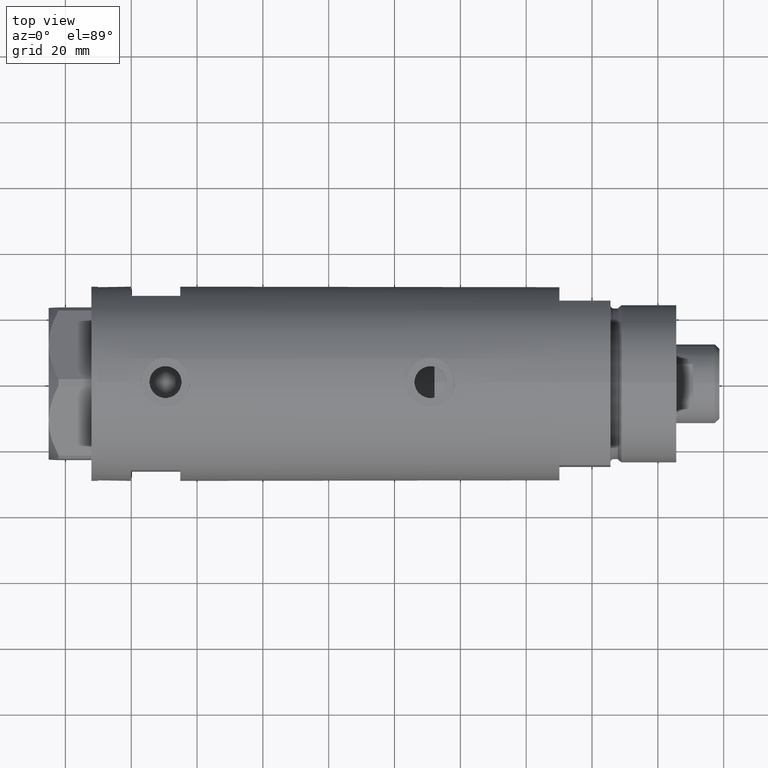
[diagram: clean part render]
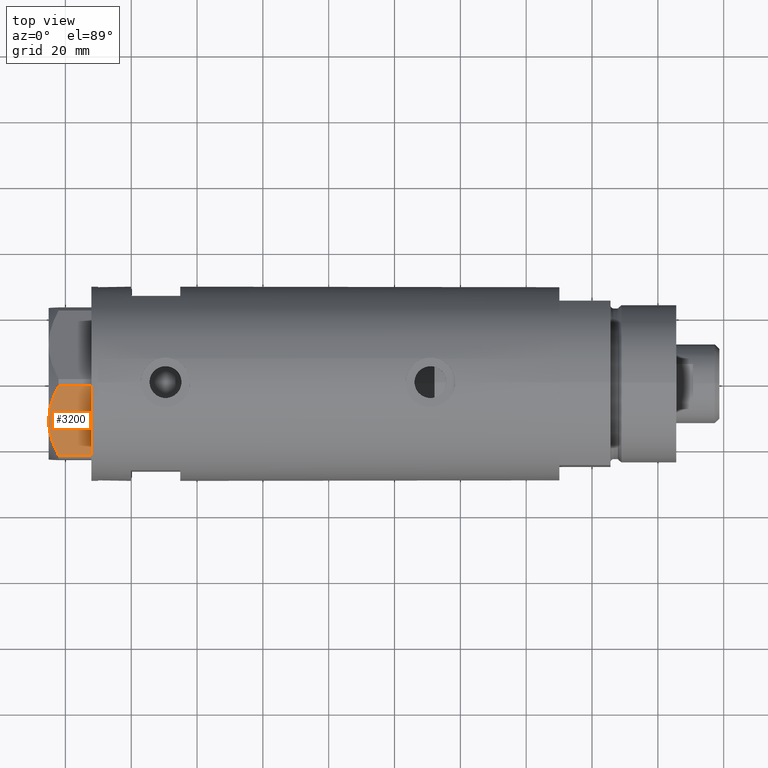
[diagram: same view with one face highlighted and labeled with its STEP entity id]
A machine part, top view. The second image highlights one B-rep face of the part: STEP entity #3200.
In plain terms, the highlighted planar face has unit normal (-0, 0.5, -0.866).
Its self-contained STEP definition (entity closure, byte-faithful):
#26 = PLANE ( 'NONE',  #490 ) ;
#98 = CARTESIAN_POINT ( 'NONE',  ( -22.03005154776132102, -13.83905619136147536, 13.00000000000000000 ) ) ;
#345 = VECTOR ( 'NONE', #811, 1000.000000000000000 ) ;
#402 = CARTESIAN_POINT ( 'NONE',  ( -3.925137811029895563, -24.29193301091818213, 11.39727285399141365 ) ) ;
#427 = CARTESIAN_POINT ( 'NONE',  ( -0.9699484522383853280, -25.99811238272275205, 9.983800287807632401 ) ) ;
#490 = AXIS2_PLACEMENT_3D ( 'NONE', #3016, #1461, #2945 ) ;
#515 = EDGE_CURVE ( 'NONE', #3776, #3333, #919, .T. ) ;
#625 = VECTOR ( 'NONE', #4419, 1000.000000000000000 ) ;
#765 = CARTESIAN_POINT ( 'NONE',  ( -5.671686373602661035, -23.28356272816404271, 12.04068176582933702 ) ) ;
#811 = DIRECTION ( 'NONE',  ( 0.000000000000000000, 0.000000000000000000, 1.000000000000000000 ) ) ;
#859 = B_SPLINE_CURVE_WITH_KNOTS ( 'NONE', 3,
 ( #1468, #4013, #1174, #2280, #2932, #2131, #4786, #1915, #1055, #1153 ),
 .UNSPECIFIED., .F., .F.,
 ( 4, 2, 2, 2, 4 ),
 ( 0.001228959670438515206, 0.007497079744270818830, 0.01063113978118697053, 0.01219816979964504639, 0.01376519981810312224 ),
 .UNSPECIFIED. ) ;
#919 = B_SPLINE_CURVE_WITH_KNOTS ( 'NONE', 3,
 ( #2988, #2616, #3841, #765, #2252, #1638, #402, #1883, #3367, #427 ),
 .UNSPECIFIED., .F., .F.,
 ( 4, 2, 2, 2, 4 ),
 ( 0.01376519981810312224, 0.01998941321701588891, 0.02154546656674407451, 0.02310151991647226705, 0.02621362661592864171 ),
 .UNSPECIFIED. ) ;
#1055 = CARTESIAN_POINT ( 'NONE',  ( -11.95865151389046588, -19.65378171203314395, 13.00000000000009948 ) ) ;
#1075 = LINE ( 'NONE', #1808, #625 ) ;
#1153 = CARTESIAN_POINT ( 'NONE',  ( -11.49999999999990585, -19.91858428704219364, 13.00000000000000000 ) ) ;
#1174 = CARTESIAN_POINT ( 'NONE',  ( -18.67981377008999644, -15.77331687414923422, 11.62937486882610827 ) ) ;
#1177 = CARTESIAN_POINT ( 'NONE',  ( -11.49999999999990585, -19.91858428704219364, 13.00000000000000000 ) ) ;
#1249 = EDGE_LOOP ( 'NONE', ( #1699, #3300, #3801, #4161, #4604 ) ) ;
#1315 = VERTEX_POINT ( 'NONE', #2816 ) ;
#1408 = EDGE_CURVE ( 'NONE', #4179, #3776, #859, .T. ) ;
#1433 = EDGE_CURVE ( 'NONE', #1315, #4002, #1075, .T. ) ;
#1461 = DIRECTION ( 'NONE',  ( 0.4999999999999950040, 0.8660254037844415942, -0.000000000000000000 ) ) ;
#1468 = CARTESIAN_POINT ( 'NONE',  ( -22.03005154776146313, -13.83905619136139364, 9.983800287807548912 ) ) ;
#1574 = DIRECTION ( 'NONE',  ( -0.000000000000000000, 0.000000000000000000, -1.000000000000000000 ) ) ;
#1638 = CARTESIAN_POINT ( 'NONE',  ( -4.357207709415887642, -24.04247733877630466, 11.57055225522972819 ) ) ;
#1699 = ORIENTED_EDGE ( 'NONE', *, *, #1408, .F. ) ;
#1808 = CARTESIAN_POINT ( 'NONE',  ( -22.99999999999990408, -13.27905619136147841, 0.000000000000000000 ) ) ;
#1883 = CARTESIAN_POINT ( 'NONE',  ( -2.640413878806567638, -25.03366871902166935, 10.84420102443839262 ) ) ;
#1915 = CARTESIAN_POINT ( 'NONE',  ( -12.41906678023023325, -19.38796083407287085, 12.98168640760950865 ) ) ;
#2131 = CARTESIAN_POINT ( 'NONE',  ( -13.80210138309694479, -18.58946543380922378, 12.85271263895580418 ) ) ;
#2252 = CARTESIAN_POINT ( 'NONE',  ( -5.229981517797923196, -23.53858114556527781, 11.89212886775844602 ) ) ;
#2258 = CARTESIAN_POINT ( 'NONE',  ( -0.9699484522383853280, -25.99811238272275205, 9.983800287807632401 ) ) ;
#2280 = CARTESIAN_POINT ( 'NONE',  ( -16.05322244309625290, -17.28978008384019915, 12.42689993760378542 ) ) ;
#2508 = CARTESIAN_POINT ( 'NONE',  ( -0.9699484522383873264, -25.99811238272275205, 0.000000000000000000 ) ) ;
#2591 = VECTOR ( 'NONE', #1574, 1000.000000000000000 ) ;
#2616 = CARTESIAN_POINT ( 'NONE',  ( -9.678244919010003500, -20.97037507344916563, 13.00000000000009237 ) ) ;
#2636 = CARTESIAN_POINT ( 'NONE',  ( -22.03005154776146313, -13.83905619136139364, 9.983800287807548912 ) ) ;
#2816 = CARTESIAN_POINT ( 'NONE',  ( -22.03005154776132102, -13.83905619136147536, 0.000000000000000000 ) ) ;
#2932 = CARTESIAN_POINT ( 'NONE',  ( -15.16323225988328893, -17.80361615569431777, 12.63731396715695077 ) ) ;
#2945 = DIRECTION ( 'NONE',  ( -0.8660254037844415942, 0.4999999999999950040, 0.000000000000000000 ) ) ;
#2988 = CARTESIAN_POINT ( 'NONE',  ( -11.49999999999990585, -19.91858428704219364, 13.00000000000000000 ) ) ;
#3016 = CARTESIAN_POINT ( 'NONE',  ( -22.99999999999990408, -13.27905619136147841, 13.00000000000000000 ) ) ;
#3080 = LINE ( 'NONE', #3437, #345 ) ;
#3200 = ADVANCED_FACE ( 'NONE', ( #4412 ), #26, .F. ) ;
#3300 = ORIENTED_EDGE ( 'NONE', *, *, #3387, .T. ) ;
#3333 = VERTEX_POINT ( 'NONE', #2258 ) ;
#3367 = CARTESIAN_POINT ( 'NONE',  ( -1.799196345396643304, -25.51934588838291162, 10.43131750950939640 ) ) ;
#3387 = EDGE_CURVE ( 'NONE', #4179, #1315, #3425, .T. ) ;
#3425 = LINE ( 'NONE', #98, #2591 ) ;
#3437 = CARTESIAN_POINT ( 'NONE',  ( -0.9699484522383907681, -25.99811238272274494, 13.00000000000000000 ) ) ;
#3776 = VERTEX_POINT ( 'NONE', #1177 ) ;
#3801 = ORIENTED_EDGE ( 'NONE', *, *, #1433, .T. ) ;
#3841 = CARTESIAN_POINT ( 'NONE',  ( -7.884645426989515649, -22.00591022298554833, 12.70765172847701052 ) ) ;
#4002 = VERTEX_POINT ( 'NONE', #2508 ) ;
#4013 = CARTESIAN_POINT ( 'NONE',  ( -20.37350567916426058, -14.79546339452093662, 10.87778242614345992 ) ) ;
#4066 = EDGE_CURVE ( 'NONE', #4002, #3333, #3080, .T. ) ;
#4161 = ORIENTED_EDGE ( 'NONE', *, *, #4066, .T. ) ;
#4179 = VERTEX_POINT ( 'NONE', #2636 ) ;
#4412 = FACE_OUTER_BOUND ( 'NONE', #1249, .T. ) ;
#4419 = DIRECTION ( 'NONE',  ( 0.8660254037844415942, -0.4999999999999950595, 0.000000000000000000 ) ) ;
#4604 = ORIENTED_EDGE ( 'NONE', *, *, #515, .F. ) ;
#4786 = CARTESIAN_POINT ( 'NONE',  ( -13.34348161667001698, -18.85424967941148822, 12.90784227772843806 ) ) ;